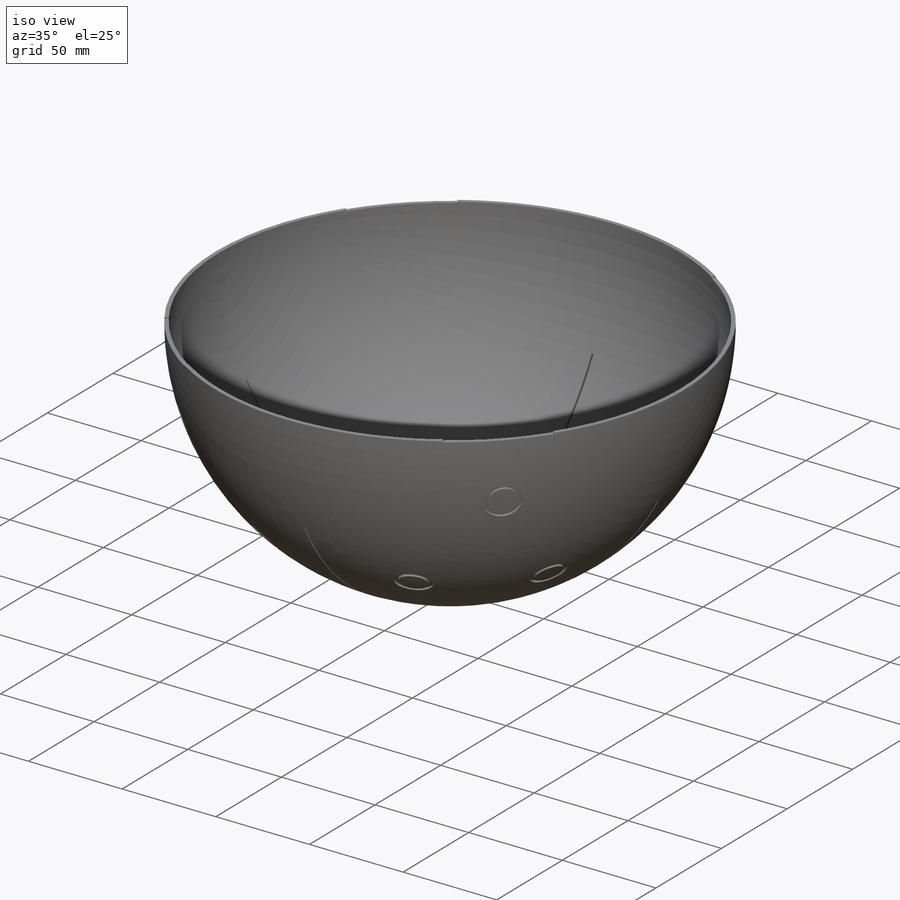
[diagram: iso view]
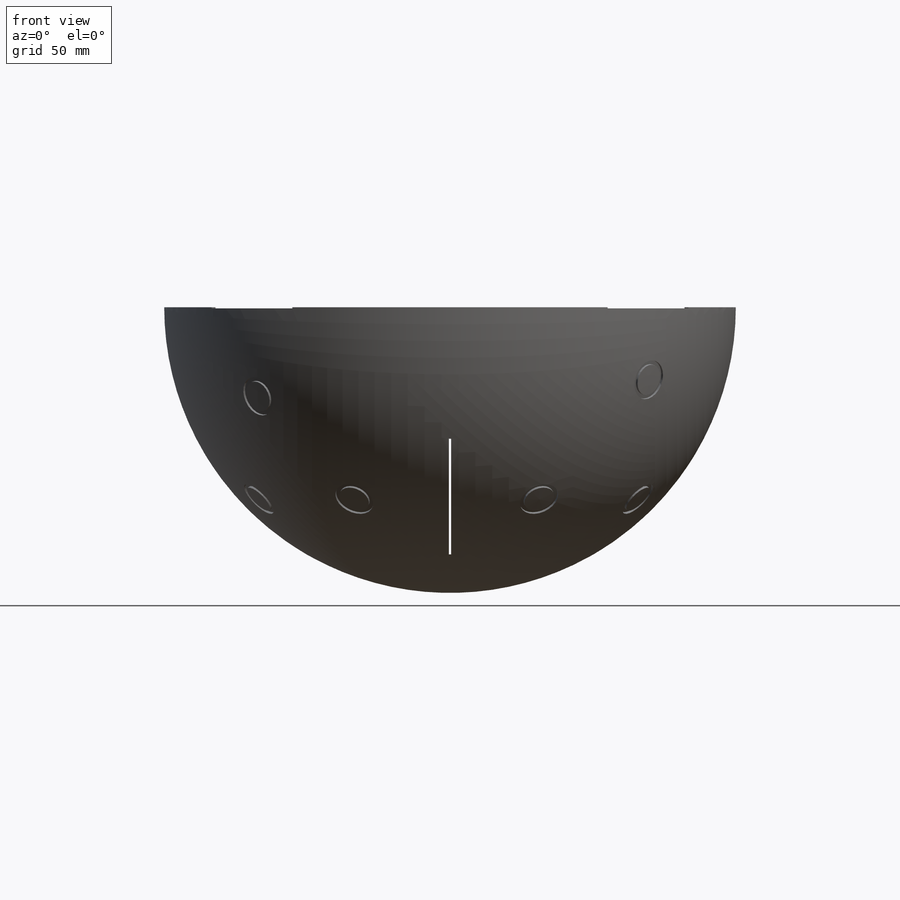
[diagram: front view]
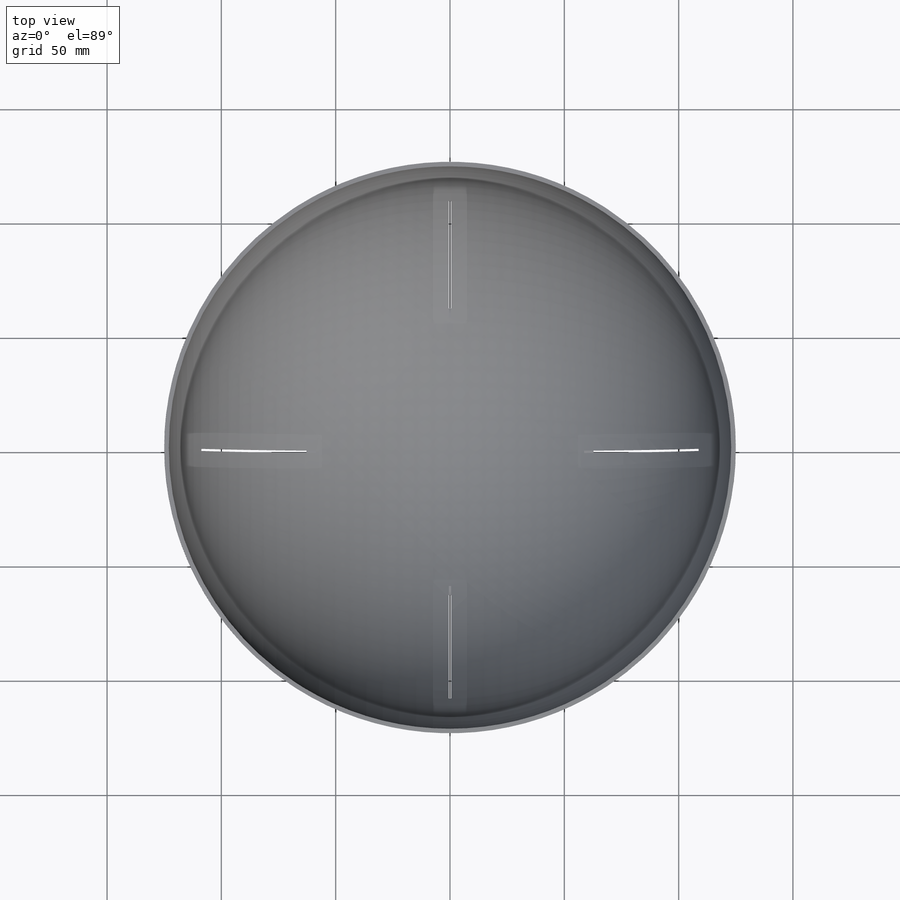
[diagram: top view]
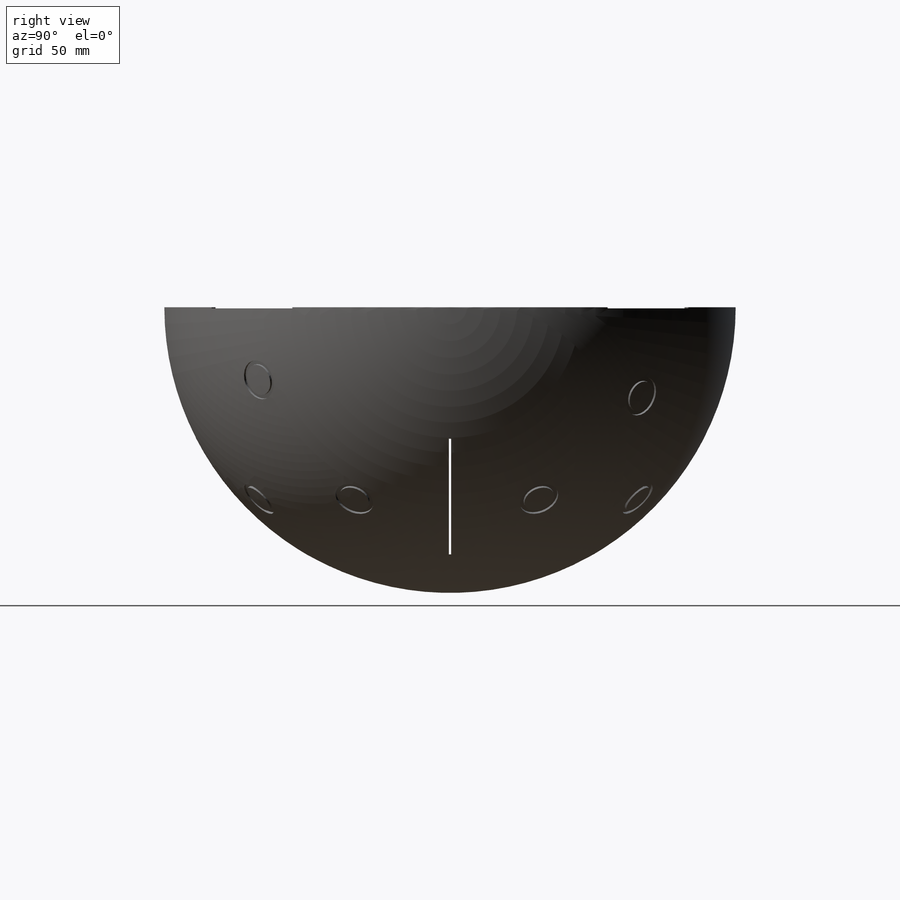
[diagram: right view]
SOLIDWORKS PART (.sldprt)
format: sldprt  version: not decoded by parser v0  size: 687,616 bytes
history: native  units: mm
features: sketch x7, plane x4, pattern_circular x4, material x1, revolve x1, shell x1, cut_extrude x1, cut_revolve x1 (+10 scaffold rows collapsed)
feature tree (30):
  scaffold x10  (default folders/planes/origin — collapsed)
  material  "材质 <未指定>"
  plane  "前视基准面"
  plane  "上视基准面"
  plane  "右视基准面"
  sketch  "草图2"  dims[D1=250.0mm D2=250.0mm]
  revolve  "旋转2"  Angle=180deg
  shell  "抽壳4"  Thickness=2mm
  sketch  "草图4"
  sketch  "草图5"  dims[D1=~47.472607mm D5=1.0mm D6=1.0mm D7=5.0mm]
  pattern_circular  "阵列(圆周)1"  Count=2 Angle=90deg
  sketch  "草图6"  dims[c1.D1=~160.397423mm c2.D1=4.0]
  cut_extrude  "切除-拉伸2"  Depth=0.5mm
  sketch  "草图7"  dims[D1=~263.489899mm]
  plane  "基准面1"
  sketch  "草图8"  dims[D1=~137.753703mm]
  cut_revolve  "切除-旋转2"  Angle=360deg
  pattern_circular  "阵列(圆周)2"  Count=2 Angle=52deg
  pattern_circular  "阵列(圆周)3"  Count=4 Angle=360deg
  sketch  "草图9"  dims[c1.D1=~371.71884mm c2.D1=8.0 c2.D3=50.0mm c2.D2=1.0 c2.D4=50.0mm]
  pattern_circular  "阵列(圆周)4"  Count=2 Angle=360deg
decode coverage: 14 of 15 modeling features carry decoded parameters
note: ~ marks probable driven/reference dimensions
note: suppression state not decoded; provenance and decode notes live in map.json
